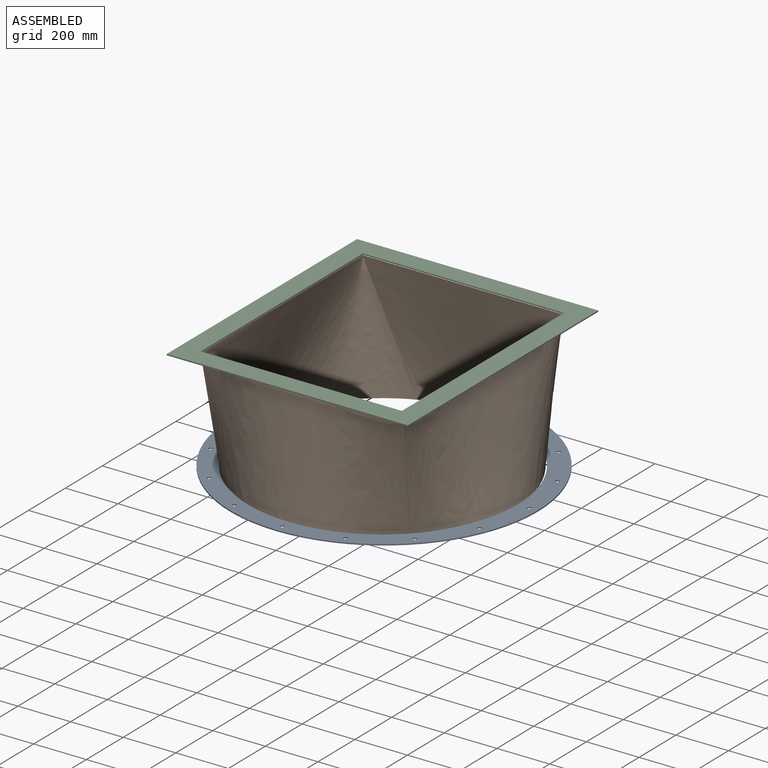
[diagram: assembled view]
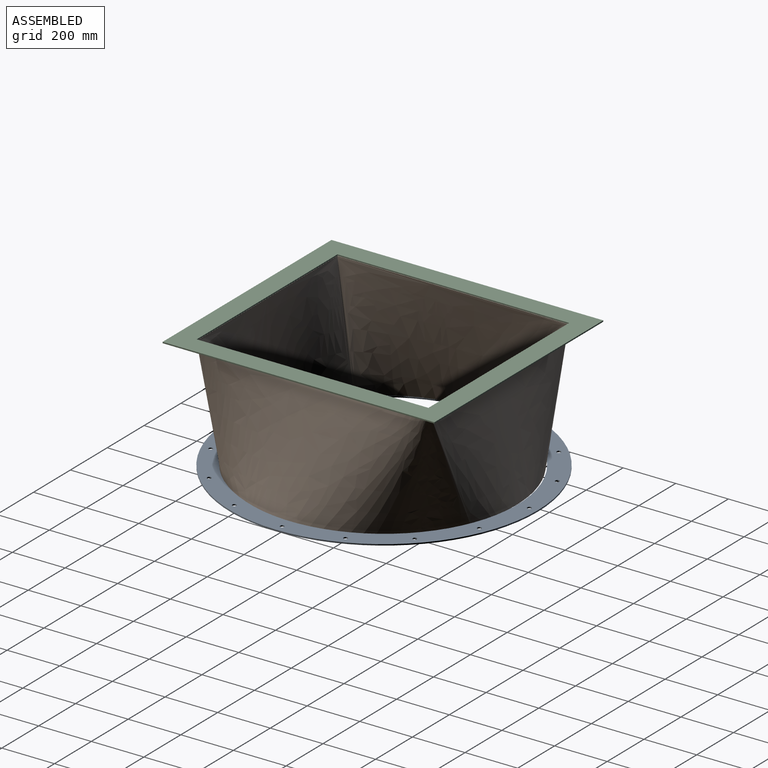
[diagram: assembled view, second angle]
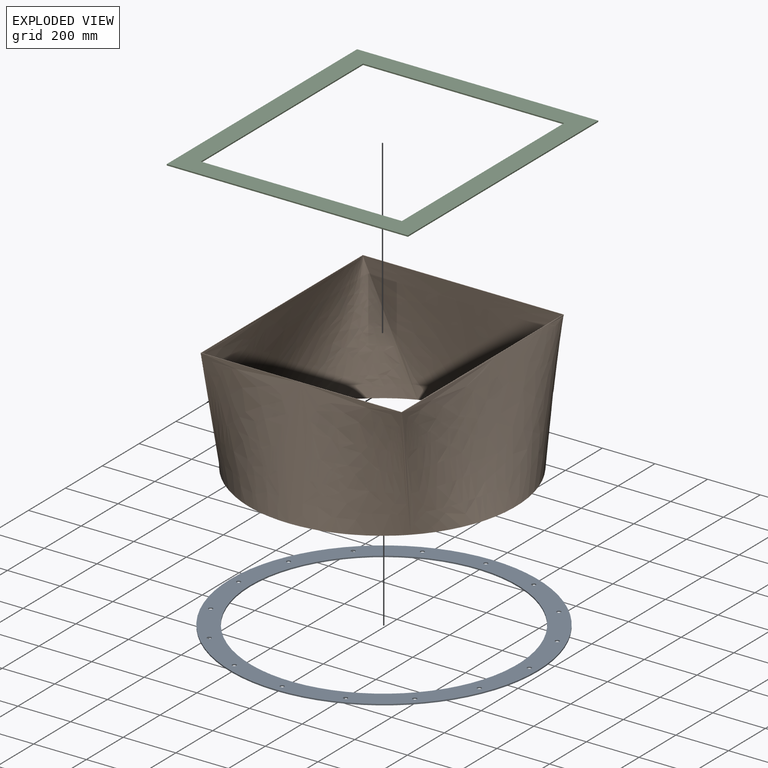
[diagram: exploded view]
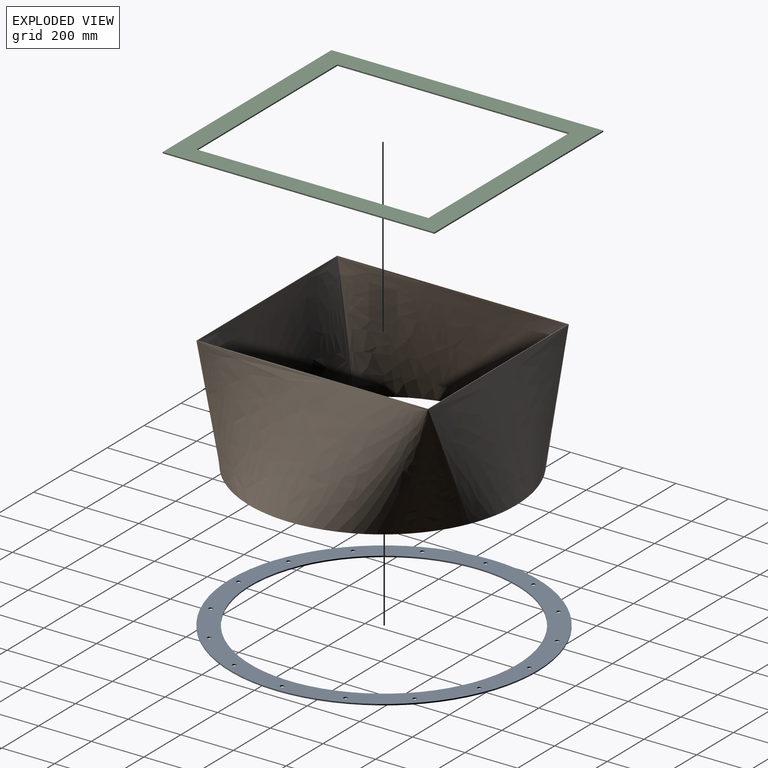
[diagram: exploded view, second angle]
ASSEMBLY  parts=3 mates=2
PART A: 20 faces, bbox 1168.4x1168.4x4.8 mm
  f0: cylinder r=7.73mm len=15.47mm, axis (0,0,-1), area 231.4mm2, adj f17,f18
  f1: cylinder r=7.73mm len=15.47mm, axis (0,0,-1), area 231.4mm2, adj f17,f18
  f2: cylinder r=7.73mm len=15.47mm, axis (0,0,-1), area 231.4mm2, adj f17,f18
  f3: cylinder r=7.73mm len=15.47mm, axis (0,0,-1), area 231.4mm2, adj f17,f18
  f4: cylinder r=7.73mm len=15.47mm, axis (0,0,-1), area 231.4mm2, adj f17,f18
  f5: cylinder r=7.73mm len=15.47mm, axis (0,0,-1), area 231.4mm2, adj f17,f18
  f6: cylinder r=7.73mm len=15.47mm, axis (0,0,-1), area 231.4mm2, adj f17,f18
  f7: cylinder r=7.73mm len=15.47mm, axis (0,0,-1), area 231.4mm2, adj f17,f18
  f8: cylinder r=7.73mm len=15.47mm, axis (0,0,-1), area 231.4mm2, adj f17,f18
  f9: cylinder r=7.73mm len=15.47mm, axis (0,0,-1), area 231.4mm2, adj f17,f18
  f10: cylinder r=7.73mm len=15.47mm, axis (0,0,-1), area 231.4mm2, adj f17,f18
  f11: cylinder r=7.73mm len=15.47mm, axis (0,0,-1), area 231.4mm2, adj f17,f18
  f12: cylinder r=7.73mm len=15.47mm, axis (0,0,-1), area 231.4mm2, adj f17,f18
  f13: cylinder r=7.73mm len=15.47mm, axis (0,0,-1), area 231.4mm2, adj f17,f18
  f14: cylinder r=7.73mm len=15.47mm, axis (0,0,-1), area 231.4mm2, adj f17,f18
  f15: cylinder r=508mm len=1016mm, axis (0,0,-1), area 15201.2mm2, adj f17,f18
  f16: cylinder r=584.2mm len=1168.4mm, axis (0,0,-1), area 17481.4mm2, adj f17,f18
  f17: plane 1168.4x1168.4mm, normal (0,0,1), area 258454.2mm2, adj f0,f1,f2,f3,f4,f5,f6,f7
  f18: plane 1168.4x1168.4mm, normal (0,0,-1), area 258454.2mm2, adj f0,f1,f2,f3,f4,f5,f6,f7
  f19: cylinder r=7.73mm len=15.47mm, axis (0,0,-1), area 231.4mm2, adj f17,f18
PART B: 18 faces, bbox 1038.2x1036.8x485.9 mm
  f0: plane 1035.44x1035.44mm, normal (0,0,-1), area 6073.3mm2, adj f2,f3,f4,f5,f6,f7,f9,f12
  f1: plane 880.63x764.19mm, normal (0,0,1), area 6314.3mm2, adj f2,f3,f4,f5,f6,f7,f10,f12
  f2: bspline ~461.77x385.77mm, area 176463mm2, adj f0,f1,f3,f5
  f3: bspline ~909.5x457.2mm, area 431564mm2, adj f0,f1,f2,f4
  f4: bspline ~461.82x385.77mm, area 133216.4mm2, adj f0,f1,f3,f7
  f5: bspline ~466.39x386.01mm, area 176463mm2, adj f0,f1,f2,f6
  f6: bspline ~909.5x457.2mm, area 431564mm2, adj f0,f1,f5,f7
  f7: bspline ~461.82x385.77mm, area 133216.4mm2, adj f0,f1,f4,f6
  f8: bspline ~4.34x1.42mm, area 1.6mm2, adj f9,f16,f17
  f9: offset ~930.57x462.85mm, area 422403.8mm2, adj f0,f8,f15,f16,f17
  f10: offset ~884.1x13.45mm, area 6700.6mm2, adj f1,f11,f12,f13,f14
  f11: bspline ~3.62x1.14mm, area 1.6mm2, adj f10,f13,f14
  f12: offset ~470.18x389.8mm, area 175693.4mm2, adj f0,f1,f10,f13,f15
  f13: offset ~930.57x462.85mm, area 423114.6mm2, adj f0,f10,f11,f12,f14
  f14: offset ~470.18x391.46mm, area 132951.8mm2, adj f0,f1,f10,f11,f13,f17
  f15: offset ~470.18x389.8mm, area 175693.4mm2, adj f0,f1,f9,f12,f16
  f16: offset ~883.84x12.44mm, area 6700.5mm2, adj f1,f8,f9,f15,f17
  f17: offset ~470.18x391.46mm, area 132951.1mm2, adj f0,f1,f8,f9,f14,f16
PART C: 10 faces, bbox 916.3x1032.7x4.8 mm
  f0: plane 763.9x4.76mm, normal (0,1,0), area 3638.1mm2, adj f1,f7,f8,f9
  f1: plane 880.33x4.76mm, normal (-1,0,0), area 4192.6mm2, adj f0,f2,f8,f9
  f2: plane 763.9x4.76mm, normal (0,-1,0), area 3638.1mm2, adj f1,f7,f8,f9
  f3: plane 1032.73x4.76mm, normal (1,0,0), area 4918.4mm2, adj f4,f6,f8,f9
  f4: plane 916.3x4.76mm, normal (0,-1,0), area 4363.9mm2, adj f3,f5,f8,f9
  f5: plane 1032.73x4.76mm, normal (-1,0,0), area 4918.4mm2, adj f4,f6,f8,f9
  f6: plane 916.3x4.76mm, normal (0,1,0), area 4363.9mm2, adj f3,f5,f8,f9
  f7: plane 880.33x4.76mm, normal (1,0,0), area 4192.6mm2, adj f0,f2,f8,f9
  f8: plane 1032.73x916.3mm, normal (0,0,1), area 273806.7mm2, adj f0,f1,f2,f3,f4,f5,f6,f7
  f9: plane 1032.73x916.3mm, normal (0,0,-1), area 273806.7mm2, adj f0,f1,f2,f3,f4,f5,f6,f7
PLACE A t=(770.89,77.45,228.01)mm
PLACE B t=(768.89,70.8,228.01)mm
PLACE C t=(768.89,72.12,228.01)mm
MATE fastened A.f15 <-> B.f0  axis (0,0,-1) through (1227.14,691.03,-1069.11)mm
MATE fastened B.f1 <-> C.f9  axis (0,0,1) through (1225.14,685.7,-611.91)mm
